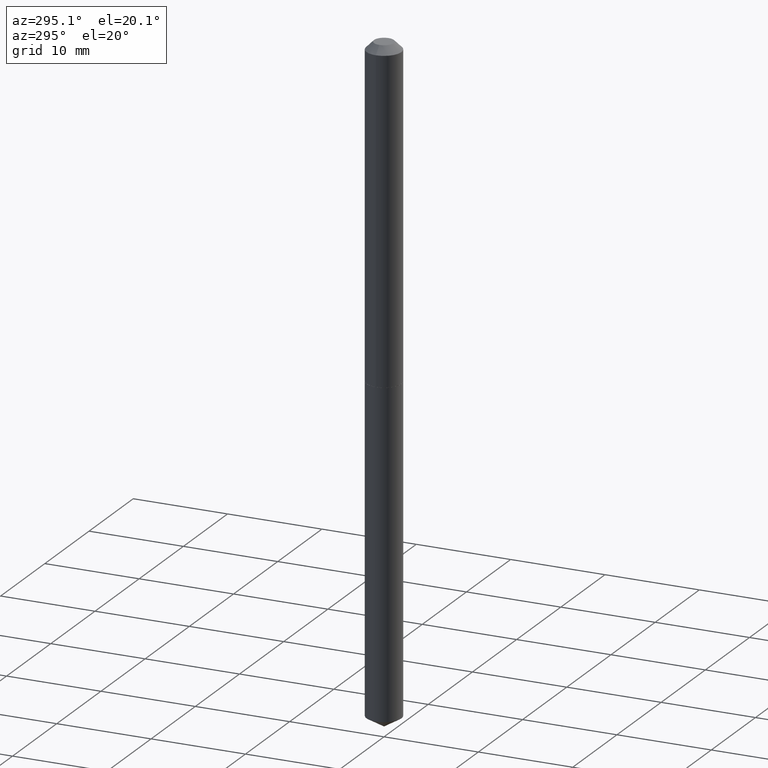
[diagram: clean part render]
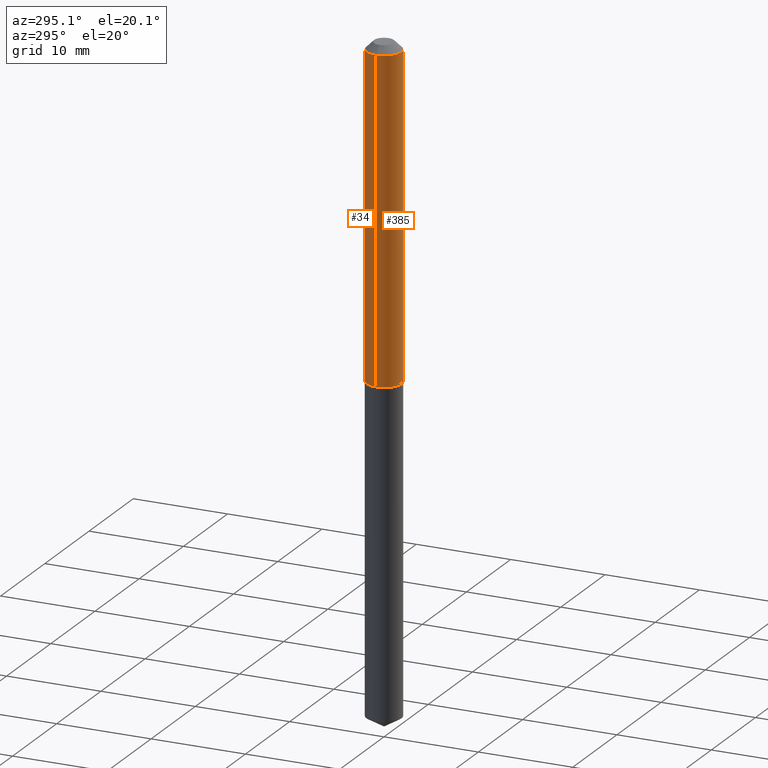
[diagram: same view with one multi-face feature highlighted, each face labeled with its STEP entity id]
A machine part, auxiliary view. The highlighted faces form ONE feature: a constant-radius fillet chain: 2 tangent blend faces with common blend radius 1.8504 mm. The faces share edges in the B-rep.
Their STEP definitions:
[1] entity #385 (Cylinder):
#5 = DIRECTION ( 'NONE',  ( 1.000000000000000000, -6.982962677686265922E-15, 0.000000000000000000 ) ) ;
#16 = CARTESIAN_POINT ( 'NONE',  ( -0.07285000000000001197, -1.921082045147231496E-15, -0.03125000000000021511 ) ) ;
#24 = CARTESIAN_POINT ( 'NONE',  ( 0.07285000000000016462, -5.277024895527528458E-15, -1.365699999999999914 ) ) ;
#33 = DIRECTION ( 'NONE',  ( -2.445468806185136597E-29, 3.491481338843145583E-15, 1.000000000000000000 ) ) ;
#41 = EDGE_CURVE ( 'NONE', #134, #76, #311, .T. ) ;
#73 = ORIENTED_EDGE ( 'NONE', *, *, #334, .T. ) ;
#75 = CARTESIAN_POINT ( 'NONE',  ( 7.642090019328604414E-31, -1.091087918388490513E-16, -0.03125000000000021511 ) ) ;
#76 = VERTEX_POINT ( 'NONE', #201 ) ;
#111 = AXIS2_PLACEMENT_3D ( 'NONE', #163, #33, #273 ) ;
#119 = VECTOR ( 'NONE', #296, 39.37007874015748143 ) ;
#120 = ORIENTED_EDGE ( 'NONE', *, *, #41, .F. ) ;
#126 = VECTOR ( 'NONE', #230, 39.37007874015748143 ) ;
#134 = VERTEX_POINT ( 'NONE', #16 ) ;
#147 = FACE_OUTER_BOUND ( 'NONE', #350, .T. ) ;
#153 = AXIS2_PLACEMENT_3D ( 'NONE', #259, #358, #322 ) ;
#156 = EDGE_CURVE ( 'NONE', #370, #76, #386, .T. ) ;
#162 = CIRCLE ( 'NONE', #111, 0.07285000000000016462 ) ;
#163 = CARTESIAN_POINT ( 'NONE',  ( 3.339776748607040525E-29, -4.768316064458083385E-15, -1.365699999999999914 ) ) ;
#171 = DIRECTION ( 'NONE',  ( -2.445468806185136597E-29, 3.491481338843145583E-15, 1.000000000000000000 ) ) ;
#186 = CARTESIAN_POINT ( 'NONE',  ( 0.07285000000000008136, -5.087088310694450726E-16, 3.552294781167343726E-30 ) ) ;
#188 = CARTESIAN_POINT ( 'NONE',  ( -0.07285000000000008136, 5.176303830012335635E-16, -3.583444213250702632E-30 ) ) ;
#201 = CARTESIAN_POINT ( 'NONE',  ( 0.07285000000000001197, -6.178176229082936802E-16, -0.03125000000000021511 ) ) ;
#211 = LINE ( 'NONE', #188, #126 ) ;
#230 = DIRECTION ( 'NONE',  ( -2.445468806185136877E-29, 3.491481338843145188E-15, 1.000000000000000000 ) ) ;
#255 = EDGE_CURVE ( 'NONE', #258, #134, #211, .T. ) ;
#258 = VERTEX_POINT ( 'NONE', #304 ) ;
#259 = CARTESIAN_POINT ( 'NONE',  ( 0.000000000000000000, 0.000000000000000000, 0.000000000000000000 ) ) ;
#272 = AXIS2_PLACEMENT_3D ( 'NONE', #75, #171, #5 ) ;
#273 = DIRECTION ( 'NONE',  ( 1.000000000000000000, -6.982962677686262766E-15, 0.000000000000000000 ) ) ;
#296 = DIRECTION ( 'NONE',  ( -2.445468806185136877E-29, 3.491481338843145188E-15, 1.000000000000000000 ) ) ;
#304 = CARTESIAN_POINT ( 'NONE',  ( -0.07285000000000016462, -4.250685681456849033E-15, -1.365699999999999914 ) ) ;
#311 = CIRCLE ( 'NONE', #272, 0.07285000000000001197 ) ;
#314 = ORIENTED_EDGE ( 'NONE', *, *, #156, .T. ) ;
#322 = DIRECTION ( 'NONE',  ( 1.000000000000000000, -6.982962677686266711E-15, 4.876176775795936353E-29 ) ) ;
#334 = EDGE_CURVE ( 'NONE', #258, #370, #162, .T. ) ;
#350 = EDGE_LOOP ( 'NONE', ( #363, #73, #314, #120 ) ) ;
#358 = DIRECTION ( 'NONE',  ( -2.445468806185136597E-29, 3.491481338843145583E-15, 1.000000000000000000 ) ) ;
#363 = ORIENTED_EDGE ( 'NONE', *, *, #255, .F. ) ;
#370 = VERTEX_POINT ( 'NONE', #24 ) ;
#384 = CYLINDRICAL_SURFACE ( 'NONE', #153, 0.07285000000000008136 ) ;
#385 = ADVANCED_FACE ( 'NONE', ( #147 ), #384, .T. ) ;
#386 = LINE ( 'NONE', #186, #119 ) ;
[2] entity #34 (Cylinder):
#8 = DIRECTION ( 'NONE',  ( -2.445468806185136597E-29, 3.491481338843145583E-15, 1.000000000000000000 ) ) ;
#16 = CARTESIAN_POINT ( 'NONE',  ( -0.07285000000000001197, -1.921082045147231496E-15, -0.03125000000000021511 ) ) ;
#24 = CARTESIAN_POINT ( 'NONE',  ( 0.07285000000000016462, -5.277024895527528458E-15, -1.365699999999999914 ) ) ;
#32 = DIRECTION ( 'NONE',  ( 1.000000000000000000, -6.982962677686265922E-15, 0.000000000000000000 ) ) ;
#34 = ADVANCED_FACE ( 'NONE', ( #313 ), #39, .T. ) ;
#39 = CYLINDRICAL_SURFACE ( 'NONE', #243, 0.07285000000000008136 ) ;
#40 = CIRCLE ( 'NONE', #100, 0.07285000000000001197 ) ;
#42 = ORIENTED_EDGE ( 'NONE', *, *, #156, .F. ) ;
#43 = ORIENTED_EDGE ( 'NONE', *, *, #312, .F. ) ;
#54 = EDGE_CURVE ( 'NONE', #370, #258, #104, .T. ) ;
#76 = VERTEX_POINT ( 'NONE', #201 ) ;
#80 = CARTESIAN_POINT ( 'NONE',  ( 3.339776748607040525E-29, -4.768316064458083385E-15, -1.365699999999999914 ) ) ;
#100 = AXIS2_PLACEMENT_3D ( 'NONE', #309, #189, #32 ) ;
#101 = AXIS2_PLACEMENT_3D ( 'NONE', #80, #8, #109 ) ;
#104 = CIRCLE ( 'NONE', #101, 0.07285000000000016462 ) ;
#109 = DIRECTION ( 'NONE',  ( 1.000000000000000000, -6.982962677686262766E-15, 0.000000000000000000 ) ) ;
#119 = VECTOR ( 'NONE', #296, 39.37007874015748143 ) ;
#126 = VECTOR ( 'NONE', #230, 39.37007874015748143 ) ;
#134 = VERTEX_POINT ( 'NONE', #16 ) ;
#156 = EDGE_CURVE ( 'NONE', #370, #76, #386, .T. ) ;
#174 = ORIENTED_EDGE ( 'NONE', *, *, #255, .T. ) ;
#186 = CARTESIAN_POINT ( 'NONE',  ( 0.07285000000000008136, -5.087088310694450726E-16, 3.552294781167343726E-30 ) ) ;
#188 = CARTESIAN_POINT ( 'NONE',  ( -0.07285000000000008136, 5.176303830012335635E-16, -3.583444213250702632E-30 ) ) ;
#189 = DIRECTION ( 'NONE',  ( -2.445468806185136597E-29, 3.491481338843145583E-15, 1.000000000000000000 ) ) ;
#201 = CARTESIAN_POINT ( 'NONE',  ( 0.07285000000000001197, -6.178176229082936802E-16, -0.03125000000000021511 ) ) ;
#211 = LINE ( 'NONE', #188, #126 ) ;
#224 = DIRECTION ( 'NONE',  ( -2.445468806185136597E-29, 3.491481338843145583E-15, 1.000000000000000000 ) ) ;
#230 = DIRECTION ( 'NONE',  ( -2.445468806185136877E-29, 3.491481338843145188E-15, 1.000000000000000000 ) ) ;
#243 = AXIS2_PLACEMENT_3D ( 'NONE', #377, #224, #316 ) ;
#255 = EDGE_CURVE ( 'NONE', #258, #134, #211, .T. ) ;
#258 = VERTEX_POINT ( 'NONE', #304 ) ;
#296 = DIRECTION ( 'NONE',  ( -2.445468806185136877E-29, 3.491481338843145188E-15, 1.000000000000000000 ) ) ;
#304 = CARTESIAN_POINT ( 'NONE',  ( -0.07285000000000016462, -4.250685681456849033E-15, -1.365699999999999914 ) ) ;
#309 = CARTESIAN_POINT ( 'NONE',  ( 7.642090019328604414E-31, -1.091087918388490513E-16, -0.03125000000000021511 ) ) ;
#312 = EDGE_CURVE ( 'NONE', #76, #134, #40, .T. ) ;
#313 = FACE_OUTER_BOUND ( 'NONE', #317, .T. ) ;
#316 = DIRECTION ( 'NONE',  ( 1.000000000000000000, -6.982962677686266711E-15, 4.876176775795936353E-29 ) ) ;
#317 = EDGE_LOOP ( 'NONE', ( #341, #174, #43, #42 ) ) ;
#341 = ORIENTED_EDGE ( 'NONE', *, *, #54, .T. ) ;
#370 = VERTEX_POINT ( 'NONE', #24 ) ;
#377 = CARTESIAN_POINT ( 'NONE',  ( 0.000000000000000000, 0.000000000000000000, 0.000000000000000000 ) ) ;
#386 = LINE ( 'NONE', #186, #119 ) ;